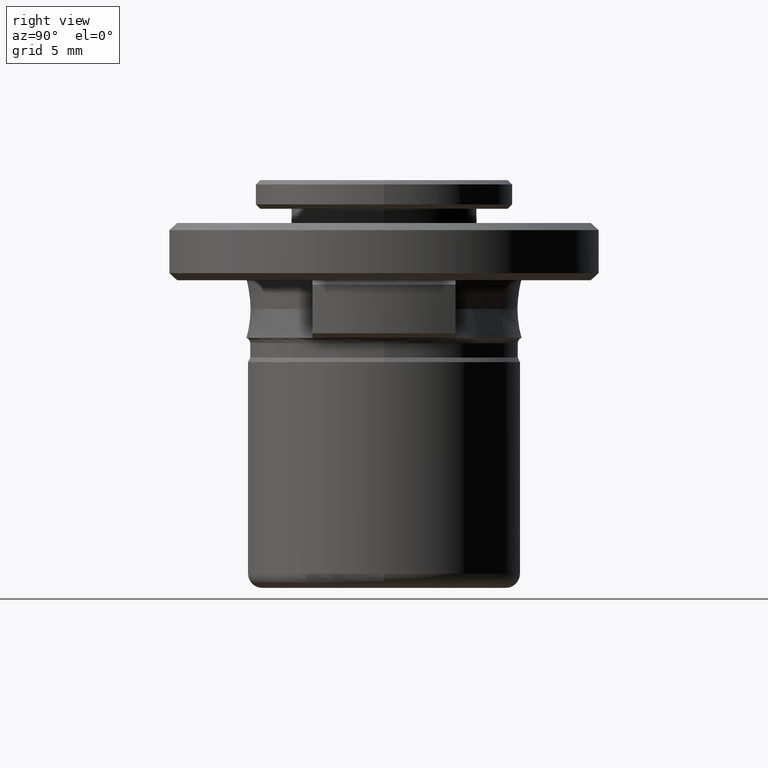
[diagram: clean part render]
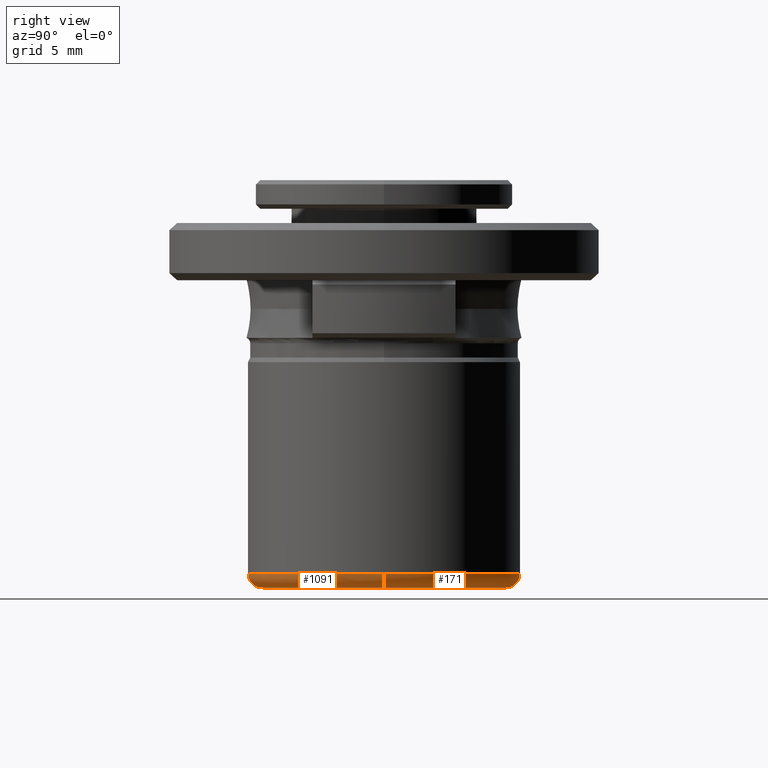
[diagram: same view with one multi-face feature highlighted, each face labeled with its STEP entity id]
A machine part, right view. The highlighted faces form ONE feature: a constant-radius fillet chain: 2 tangent blend faces with common blend radius 1 mm. The faces share edges in the B-rep.
Their STEP definitions:
[1] entity #171 (Torus):
#17 = CIRCLE ( 'NONE', #739, 9.500000000000000000 ) ;
#25 = DIRECTION ( 'NONE',  ( 0.0000000000000000000, 0.0000000000000000000, 1.000000000000000000 ) ) ;
#101 = EDGE_CURVE ( 'NONE', #1638, #391, #450, .T. ) ;
#136 = VERTEX_POINT ( 'NONE', #1348 ) ;
#171 = ADVANCED_FACE ( 'NONE', ( #604 ), #232, .T. ) ;
#199 = VERTEX_POINT ( 'NONE', #876 ) ;
#232 = TOROIDAL_SURFACE ( 'NONE', #257, 8.500000000000000000, 1.000000000000000000 ) ;
#257 = AXIS2_PLACEMENT_3D ( 'NONE', #1643, #25, #1016 ) ;
#263 = CARTESIAN_POINT ( 'NONE',  ( 0.0000000000000000000, 2.364620801796248300E-016, -11.75000000000000000 ) ) ;
#309 = AXIS2_PLACEMENT_3D ( 'NONE', #1260, #433, #1411 ) ;
#377 = CARTESIAN_POINT ( 'NONE',  ( -8.500000000000000000, 1.277411859454874900E-015, -11.75000000000000000 ) ) ;
#391 = VERTEX_POINT ( 'NONE', #1701 ) ;
#410 = DIRECTION ( 'NONE',  ( 1.000000000000000000, 0.0000000000000000000, 0.0000000000000000000 ) ) ;
#433 = DIRECTION ( 'NONE',  ( 0.0000000000000000000, 0.0000000000000000000, 1.000000000000000000 ) ) ;
#450 = CIRCLE ( 'NONE', #1422, 1.000000000000000900 ) ;
#485 = CIRCLE ( 'NONE', #1659, 1.000000000000000900 ) ;
#515 = DIRECTION ( 'NONE',  ( -1.000000000000000000, 1.224646799147351500E-016, 0.0000000000000000000 ) ) ;
#604 = FACE_OUTER_BOUND ( 'NONE', #1546, .T. ) ;
#609 = CARTESIAN_POINT ( 'NONE',  ( 8.500000000000000000, 2.364620801796248300E-016, -11.75000000000000000 ) ) ;
#652 = EDGE_CURVE ( 'NONE', #199, #1638, #1144, .T. ) ;
#692 = DIRECTION ( 'NONE',  ( -0.0000000000000000000, -0.0000000000000000000, -1.000000000000000000 ) ) ;
#725 = CARTESIAN_POINT ( 'NONE',  ( 1.163414459189985500E-015, 9.500000000000000000, -11.75000000000000000 ) ) ;
#739 = AXIS2_PLACEMENT_3D ( 'NONE', #263, #1234, #410 ) ;
#743 = DIRECTION ( 'NONE',  ( 0.0000000000000000000, 0.0000000000000000000, -1.000000000000000000 ) ) ;
#840 = ORIENTED_EDGE ( 'NONE', *, *, #970, .T. ) ;
#876 = CARTESIAN_POINT ( 'NONE',  ( -8.500000000000000000, 1.338644199412242400E-015, -12.75000000000000200 ) ) ;
#970 = EDGE_CURVE ( 'NONE', #199, #136, #485, .T. ) ;
#1007 = EDGE_CURVE ( 'NONE', #391, #1205, #1473, .T. ) ;
#1014 = ORIENTED_EDGE ( 'NONE', *, *, #652, .F. ) ;
#1016 = DIRECTION ( 'NONE',  ( 1.000000000000000000, 0.0000000000000000000, 0.0000000000000000000 ) ) ;
#1039 = AXIS2_PLACEMENT_3D ( 'NONE', #1528, #692, #1676 ) ;
#1144 = CIRCLE ( 'NONE', #1039, 8.500000000000000000 ) ;
#1188 = ORIENTED_EDGE ( 'NONE', *, *, #1007, .F. ) ;
#1205 = VERTEX_POINT ( 'NONE', #725 ) ;
#1234 = DIRECTION ( 'NONE',  ( 0.0000000000000000000, 0.0000000000000000000, 1.000000000000000000 ) ) ;
#1260 = CARTESIAN_POINT ( 'NONE',  ( 0.0000000000000000000, 2.364620801796248300E-016, -11.75000000000000000 ) ) ;
#1348 = CARTESIAN_POINT ( 'NONE',  ( -9.500000000000001800, 1.399876539369610000E-015, -11.75000000000000000 ) ) ;
#1349 = DIRECTION ( 'NONE',  ( 1.224646799147353200E-016, 1.000000000000000000, -0.0000000000000000000 ) ) ;
#1361 = EDGE_CURVE ( 'NONE', #1205, #136, #17, .T. ) ;
#1411 = DIRECTION ( 'NONE',  ( 1.000000000000000000, 0.0000000000000000000, 0.0000000000000000000 ) ) ;
#1422 = AXIS2_PLACEMENT_3D ( 'NONE', #609, #1577, #743 ) ;
#1471 = ORIENTED_EDGE ( 'NONE', *, *, #1361, .F. ) ;
#1473 = CIRCLE ( 'NONE', #309, 9.500000000000000000 ) ;
#1528 = CARTESIAN_POINT ( 'NONE',  ( 0.0000000000000000000, 2.364620801796248300E-016, -12.75000000000000200 ) ) ;
#1546 = EDGE_LOOP ( 'NONE', ( #1014, #840, #1471, #1188, #1630 ) ) ;
#1577 = DIRECTION ( 'NONE',  ( 0.0000000000000000000, -1.000000000000000000, 0.0000000000000000000 ) ) ;
#1630 = ORIENTED_EDGE ( 'NONE', *, *, #101, .F. ) ;
#1638 = VERTEX_POINT ( 'NONE', #1821 ) ;
#1643 = CARTESIAN_POINT ( 'NONE',  ( 0.0000000000000000000, 2.364620801796248300E-016, -11.75000000000000000 ) ) ;
#1659 = AXIS2_PLACEMENT_3D ( 'NONE', #377, #1349, #515 ) ;
#1676 = DIRECTION ( 'NONE',  ( 1.000000000000000000, 0.0000000000000000000, 0.0000000000000000000 ) ) ;
#1701 = CARTESIAN_POINT ( 'NONE',  ( 9.500000000000001800, 2.364620801796248300E-016, -11.75000000000000000 ) ) ;
#1821 = CARTESIAN_POINT ( 'NONE',  ( 8.500000000000000000, 2.364620801796248300E-016, -12.75000000000000200 ) ) ;
[2] entity #1091 (Torus):
#101 = EDGE_CURVE ( 'NONE', #1638, #391, #450, .T. ) ;
#124 = DIRECTION ( 'NONE',  ( 1.000000000000000000, 0.0000000000000000000, 0.0000000000000000000 ) ) ;
#136 = VERTEX_POINT ( 'NONE', #1348 ) ;
#158 = CARTESIAN_POINT ( 'NONE',  ( 0.0000000000000000000, 2.364620801796248300E-016, -11.75000000000000000 ) ) ;
#199 = VERTEX_POINT ( 'NONE', #876 ) ;
#295 = TOROIDAL_SURFACE ( 'NONE', #861, 8.500000000000000000, 1.000000000000000000 ) ;
#296 = DIRECTION ( 'NONE',  ( 0.0000000000000000000, 0.0000000000000000000, 1.000000000000000000 ) ) ;
#377 = CARTESIAN_POINT ( 'NONE',  ( -8.500000000000000000, 1.277411859454874900E-015, -11.75000000000000000 ) ) ;
#391 = VERTEX_POINT ( 'NONE', #1701 ) ;
#425 = AXIS2_PLACEMENT_3D ( 'NONE', #1814, #959, #124 ) ;
#430 = CIRCLE ( 'NONE', #1772, 8.500000000000000000 ) ;
#450 = CIRCLE ( 'NONE', #1422, 1.000000000000000900 ) ;
#466 = EDGE_CURVE ( 'NONE', #136, #1819, #1615, .T. ) ;
#485 = CIRCLE ( 'NONE', #1659, 1.000000000000000900 ) ;
#515 = DIRECTION ( 'NONE',  ( -1.000000000000000000, 1.224646799147351500E-016, 0.0000000000000000000 ) ) ;
#520 = ORIENTED_EDGE ( 'NONE', *, *, #977, .F. ) ;
#608 = CIRCLE ( 'NONE', #425, 9.500000000000000000 ) ;
#609 = CARTESIAN_POINT ( 'NONE',  ( 8.500000000000000000, 2.364620801796248300E-016, -11.75000000000000000 ) ) ;
#742 = DIRECTION ( 'NONE',  ( 0.0000000000000000000, 0.0000000000000000000, 1.000000000000000000 ) ) ;
#743 = DIRECTION ( 'NONE',  ( 0.0000000000000000000, 0.0000000000000000000, -1.000000000000000000 ) ) ;
#788 = CARTESIAN_POINT ( 'NONE',  ( 0.0000000000000000000, 2.364620801796248300E-016, -12.75000000000000200 ) ) ;
#794 = ORIENTED_EDGE ( 'NONE', *, *, #970, .F. ) ;
#861 = AXIS2_PLACEMENT_3D ( 'NONE', #158, #296, #1429 ) ;
#871 = AXIS2_PLACEMENT_3D ( 'NONE', #1576, #742, #1732 ) ;
#876 = CARTESIAN_POINT ( 'NONE',  ( -8.500000000000000000, 1.338644199412242400E-015, -12.75000000000000200 ) ) ;
#926 = DIRECTION ( 'NONE',  ( 1.000000000000000000, 0.0000000000000000000, 0.0000000000000000000 ) ) ;
#959 = DIRECTION ( 'NONE',  ( 0.0000000000000000000, 0.0000000000000000000, 1.000000000000000000 ) ) ;
#970 = EDGE_CURVE ( 'NONE', #199, #136, #485, .T. ) ;
#977 = EDGE_CURVE ( 'NONE', #1638, #199, #430, .T. ) ;
#989 = FACE_OUTER_BOUND ( 'NONE', #1044, .T. ) ;
#1044 = EDGE_LOOP ( 'NONE', ( #794, #520, #1398, #1066, #1770 ) ) ;
#1066 = ORIENTED_EDGE ( 'NONE', *, *, #1598, .F. ) ;
#1091 = ADVANCED_FACE ( 'NONE', ( #989 ), #295, .T. ) ;
#1226 = CARTESIAN_POINT ( 'NONE',  ( 0.0000000000000000000, -9.500000000000000000, -11.75000000000000000 ) ) ;
#1348 = CARTESIAN_POINT ( 'NONE',  ( -9.500000000000001800, 1.399876539369610000E-015, -11.75000000000000000 ) ) ;
#1349 = DIRECTION ( 'NONE',  ( 1.224646799147353200E-016, 1.000000000000000000, -0.0000000000000000000 ) ) ;
#1398 = ORIENTED_EDGE ( 'NONE', *, *, #101, .T. ) ;
#1422 = AXIS2_PLACEMENT_3D ( 'NONE', #609, #1577, #743 ) ;
#1429 = DIRECTION ( 'NONE',  ( 1.000000000000000000, 0.0000000000000000000, 0.0000000000000000000 ) ) ;
#1576 = CARTESIAN_POINT ( 'NONE',  ( 0.0000000000000000000, 2.364620801796248300E-016, -11.75000000000000000 ) ) ;
#1577 = DIRECTION ( 'NONE',  ( 0.0000000000000000000, -1.000000000000000000, 0.0000000000000000000 ) ) ;
#1598 = EDGE_CURVE ( 'NONE', #1819, #391, #608, .T. ) ;
#1615 = CIRCLE ( 'NONE', #871, 9.500000000000000000 ) ;
#1638 = VERTEX_POINT ( 'NONE', #1821 ) ;
#1659 = AXIS2_PLACEMENT_3D ( 'NONE', #377, #1349, #515 ) ;
#1701 = CARTESIAN_POINT ( 'NONE',  ( 9.500000000000001800, 2.364620801796248300E-016, -11.75000000000000000 ) ) ;
#1732 = DIRECTION ( 'NONE',  ( 1.000000000000000000, 0.0000000000000000000, 0.0000000000000000000 ) ) ;
#1770 = ORIENTED_EDGE ( 'NONE', *, *, #466, .F. ) ;
#1772 = AXIS2_PLACEMENT_3D ( 'NONE', #788, #1782, #926 ) ;
#1782 = DIRECTION ( 'NONE',  ( -0.0000000000000000000, -0.0000000000000000000, -1.000000000000000000 ) ) ;
#1814 = CARTESIAN_POINT ( 'NONE',  ( 0.0000000000000000000, 2.364620801796248300E-016, -11.75000000000000000 ) ) ;
#1819 = VERTEX_POINT ( 'NONE', #1226 ) ;
#1821 = CARTESIAN_POINT ( 'NONE',  ( 8.500000000000000000, 2.364620801796248300E-016, -12.75000000000000200 ) ) ;